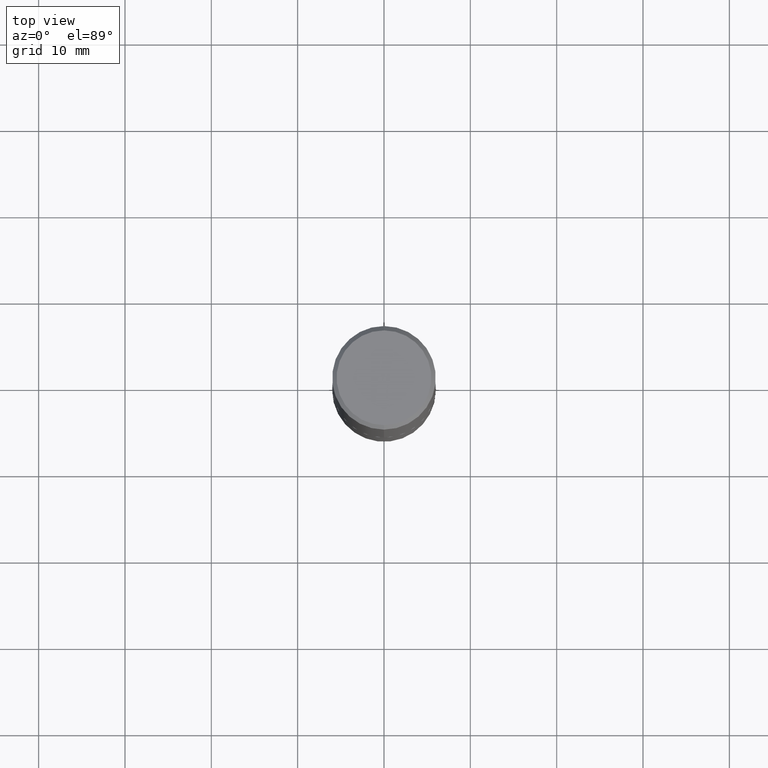
[diagram: clean part render]
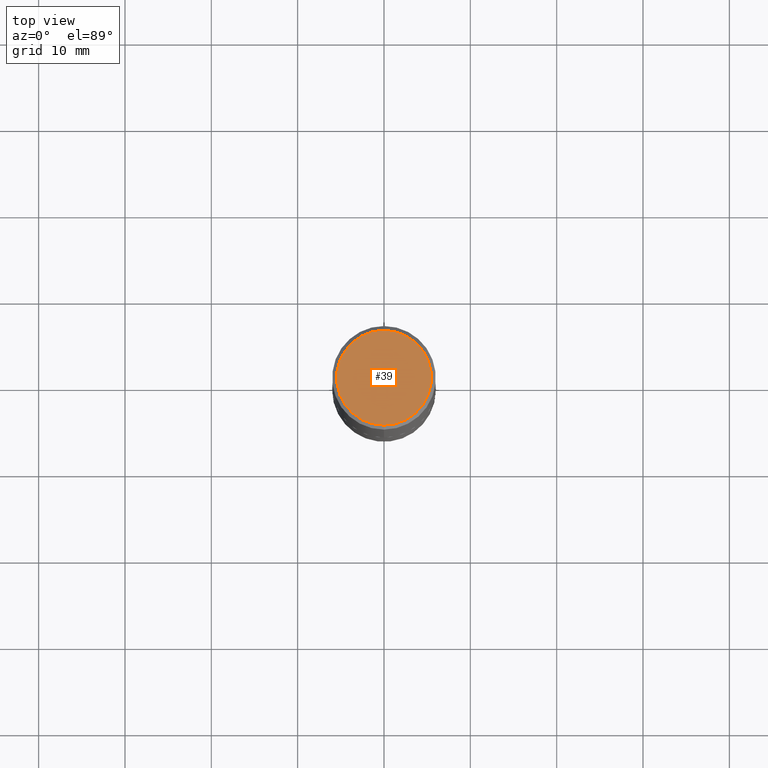
[diagram: same view with one face highlighted and labeled with its STEP entity id]
A machine part, top view. The second image highlights one B-rep face of the part: STEP entity #39.
In plain terms, the highlighted planar face has unit normal (0, -0, -1).
Its self-contained STEP definition (entity closure, byte-faithful):
#34 = CIRCLE ( 'NONE', #308, 0.2161999999999997535 ) ;
#39 = ADVANCED_FACE ( 'NONE', ( #218 ), #407, .F. ) ;
#41 = VERTEX_POINT ( 'NONE', #75 ) ;
#49 = DIRECTION ( 'NONE',  ( -6.982962677686266711E-15, -1.000000000000000000, 3.490920090629483706E-15 ) ) ;
#75 = CARTESIAN_POINT ( 'NONE',  ( 1.579546157692632438E-15, 0.2161999999999997535, -6.054603283043727914E-16 ) ) ;
#126 = EDGE_CURVE ( 'NONE', #322, #41, #34, .T. ) ;
#184 = DIRECTION ( 'NONE',  ( 6.982962677686265922E-15, 1.000000000000000000, -3.490920090629484100E-15 ) ) ;
#210 = CARTESIAN_POINT ( 'NONE',  ( -3.651097613894796322E-45, 5.211126655576527214E-31, 1.492765952897207328E-16 ) ) ;
#218 = FACE_OUTER_BOUND ( 'NONE', #248, .T. ) ;
#236 = EDGE_CURVE ( 'NONE', #41, #322, #253, .T. ) ;
#248 = EDGE_LOOP ( 'NONE', ( #338, #408 ) ) ;
#253 = CIRCLE ( 'NONE', #343, 0.2161999999999997535 ) ;
#273 = CARTESIAN_POINT ( 'NONE',  ( -3.651097613894796322E-45, 5.211126655576527214E-31, 1.492765952897207328E-16 ) ) ;
#279 = CARTESIAN_POINT ( 'NONE',  ( -1.551844647095918761E-15, -0.2161999999999997535, 9.040135188838143063E-16 ) ) ;
#308 = AXIS2_PLACEMENT_3D ( 'NONE', #273, #409, #411 ) ;
#311 = CARTESIAN_POINT ( 'NONE',  ( 1.509716530915769140E-15, 0.2161999999999997535, -6.800986259492332687E-16 ) ) ;
#322 = VERTEX_POINT ( 'NONE', #279 ) ;
#338 = ORIENTED_EDGE ( 'NONE', *, *, #236, .T. ) ;
#342 = DIRECTION ( 'NONE',  ( -2.445860723718028373E-29, 3.490920090629483706E-15, 1.000000000000000000 ) ) ;
#343 = AXIS2_PLACEMENT_3D ( 'NONE', #210, #342, #49 ) ;
#351 = DIRECTION ( 'NONE',  ( 2.445860723718027813E-29, -3.490920090629484100E-15, -1.000000000000000000 ) ) ;
#366 = AXIS2_PLACEMENT_3D ( 'NONE', #311, #351, #184 ) ;
#407 = PLANE ( 'NONE',  #366 ) ;
#408 = ORIENTED_EDGE ( 'NONE', *, *, #126, .T. ) ;
#409 = DIRECTION ( 'NONE',  ( -2.445860723718028373E-29, 3.490920090629483706E-15, 1.000000000000000000 ) ) ;
#411 = DIRECTION ( 'NONE',  ( -6.982962677686266711E-15, -1.000000000000000000, 3.490920090629483706E-15 ) ) ;